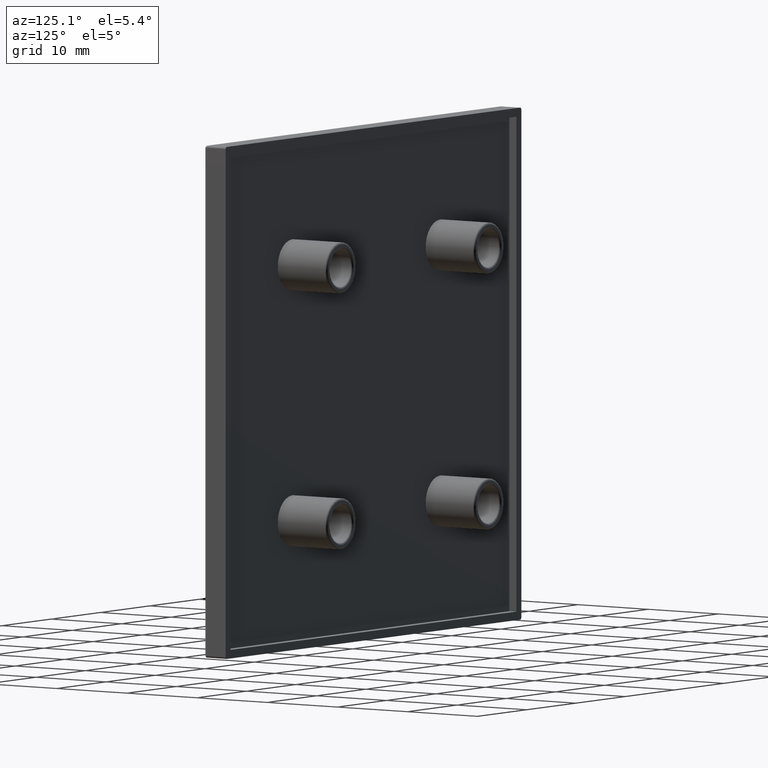
[diagram: clean part render]
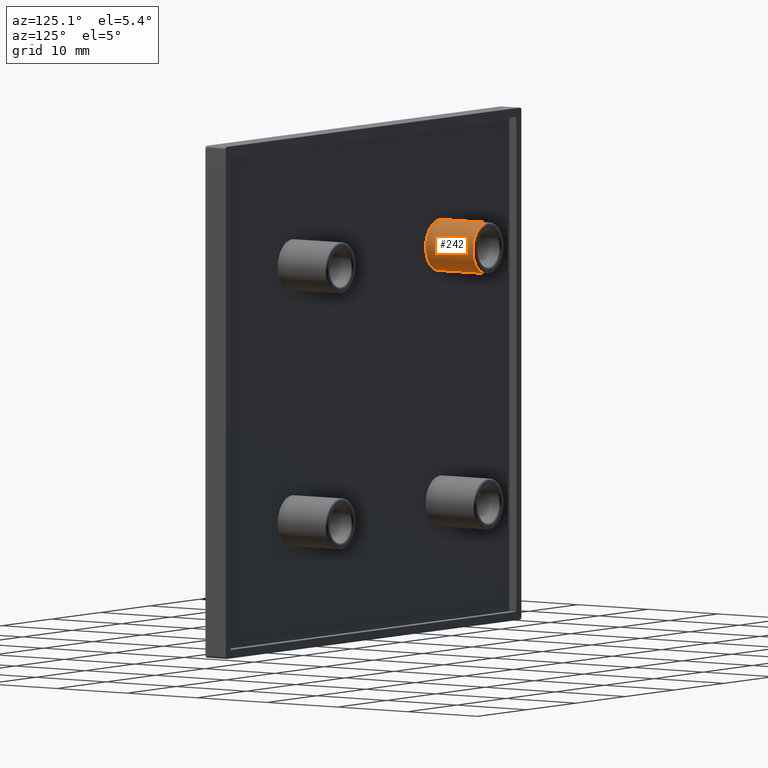
[diagram: same view with one face highlighted and labeled with its STEP entity id]
A machine part, auxiliary view. The second image highlights one B-rep face of the part: STEP entity #242.
In plain terms, the highlighted cylindrical surface (edge-blend (fillet) strip) has radius 3 mm, axis along (0, -1, 0).
Its self-contained STEP definition (entity closure, byte-faithful):
#218 = CARTESIAN_POINT ( 'NONE',  ( 15.00000000000000000, 8.750000000000000000, -18.00000000000000400 ) ) ;
#219 = DIRECTION ( 'NONE',  ( 0.0000000000000000000, -1.000000000000000000, 0.0000000000000000000 ) ) ;
#242 = ADVANCED_FACE ( 'NONE', ( #1188 ), #1282, .T. ) ;
#324 = AXIS2_PLACEMENT_3D ( 'NONE', #887, #888, #889 ) ;
#378 = AXIS2_PLACEMENT_3D ( 'NONE', #704, #705, #706 ) ;
#379 = AXIS2_PLACEMENT_3D ( 'NONE', #709, #710, #711 ) ;
#524 = LINE ( 'NONE', #707, #526 ) ;
#525 = CIRCLE ( 'NONE', #378, 3.000000000000002700 ) ;
#526 = VECTOR ( 'NONE', #708, 1000.000000000000000 ) ;
#528 = CIRCLE ( 'NONE', #379, 3.000000000000002700 ) ;
#581 = VERTEX_POINT ( 'NONE', #1560 ) ;
#622 = VERTEX_POINT ( 'NONE', #1583 ) ;
#623 = VERTEX_POINT ( 'NONE', #1584 ) ;
#704 = CARTESIAN_POINT ( 'NONE',  ( 15.00000000000000000, 2.000000000000000000, -15.00000000000000000 ) ) ;
#705 = DIRECTION ( 'NONE',  ( 0.0000000000000000000, -1.000000000000000000, 0.0000000000000000000 ) ) ;
#706 = DIRECTION ( 'NONE',  ( 0.0000000000000000000, 0.0000000000000000000, -1.000000000000000000 ) ) ;
#707 = CARTESIAN_POINT ( 'NONE',  ( 15.00000000000000000, 8.750000000000000000, -11.99999999999999600 ) ) ;
#708 = DIRECTION ( 'NONE',  ( 0.0000000000000000000, -1.000000000000000000, 0.0000000000000000000 ) ) ;
#709 = CARTESIAN_POINT ( 'NONE',  ( 15.00000000000000000, 8.750000000000000000, -15.00000000000000000 ) ) ;
#710 = DIRECTION ( 'NONE',  ( -0.0000000000000000000, 1.000000000000000000, -0.0000000000000000000 ) ) ;
#711 = DIRECTION ( 'NONE',  ( 0.0000000000000000000, 0.0000000000000000000, -1.000000000000000000 ) ) ;
#827 = VERTEX_POINT ( 'NONE', #1607 ) ;
#887 = CARTESIAN_POINT ( 'NONE',  ( 15.00000000000000000, 8.750000000000000000, -15.00000000000000000 ) ) ;
#888 = DIRECTION ( 'NONE',  ( 0.0000000000000000000, -1.000000000000000000, 0.0000000000000000000 ) ) ;
#889 = DIRECTION ( 'NONE',  ( 0.0000000000000000000, 0.0000000000000000000, -1.000000000000000000 ) ) ;
#1025 = EDGE_CURVE ( 'NONE', #827, #622, #525, .T. ) ;
#1026 = EDGE_CURVE ( 'NONE', #623, #622, #524, .T. ) ;
#1027 = EDGE_CURVE ( 'NONE', #623, #581, #528, .T. ) ;
#1156 = ORIENTED_EDGE ( 'NONE', *, *, #1664, .F. ) ;
#1188 = FACE_OUTER_BOUND ( 'NONE', #1211, .T. ) ;
#1211 = EDGE_LOOP ( 'NONE', ( #1269, #1443, #1444, #1156 ) ) ;
#1269 = ORIENTED_EDGE ( 'NONE', *, *, #1027, .F. ) ;
#1282 = CYLINDRICAL_SURFACE ( 'NONE', #324, 3.000000000000002700 ) ;
#1443 = ORIENTED_EDGE ( 'NONE', *, *, #1026, .T. ) ;
#1444 = ORIENTED_EDGE ( 'NONE', *, *, #1025, .F. ) ;
#1560 = CARTESIAN_POINT ( 'NONE',  ( 15.00000000000000000, 8.750000000000000000, -18.00000000000000400 ) ) ;
#1583 = CARTESIAN_POINT ( 'NONE',  ( 15.00000000000000000, 2.000000000000000000, -11.99999999999999600 ) ) ;
#1584 = CARTESIAN_POINT ( 'NONE',  ( 15.00000000000000000, 8.750000000000000000, -11.99999999999999600 ) ) ;
#1607 = CARTESIAN_POINT ( 'NONE',  ( 15.00000000000000000, 2.000000000000000000, -18.00000000000000400 ) ) ;
#1664 = EDGE_CURVE ( 'NONE', #581, #827, #1766, .T. ) ;
#1766 = LINE ( 'NONE', #218, #1768 ) ;
#1768 = VECTOR ( 'NONE', #219, 1000.000000000000000 ) ;